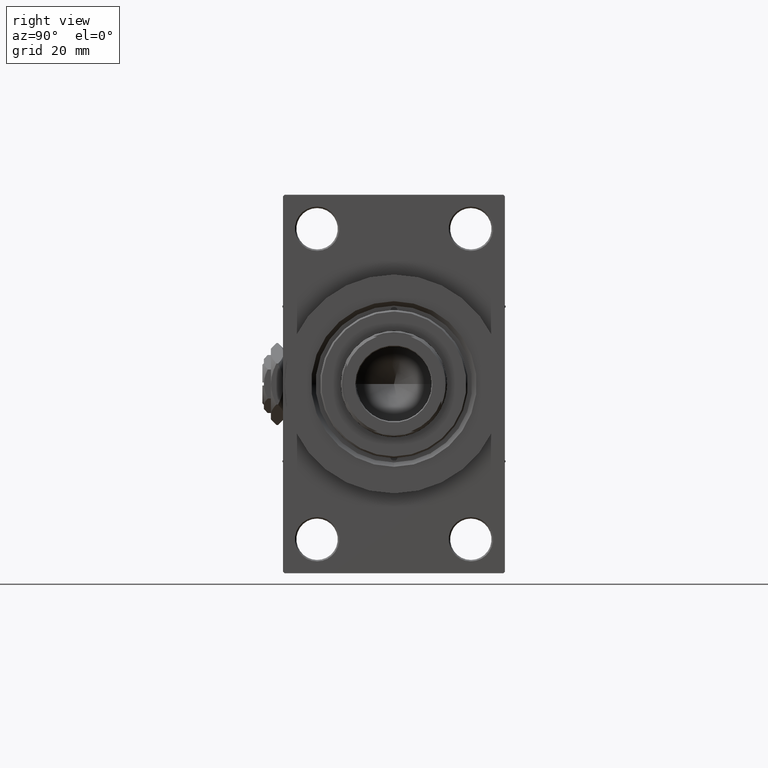
[diagram: clean part render]
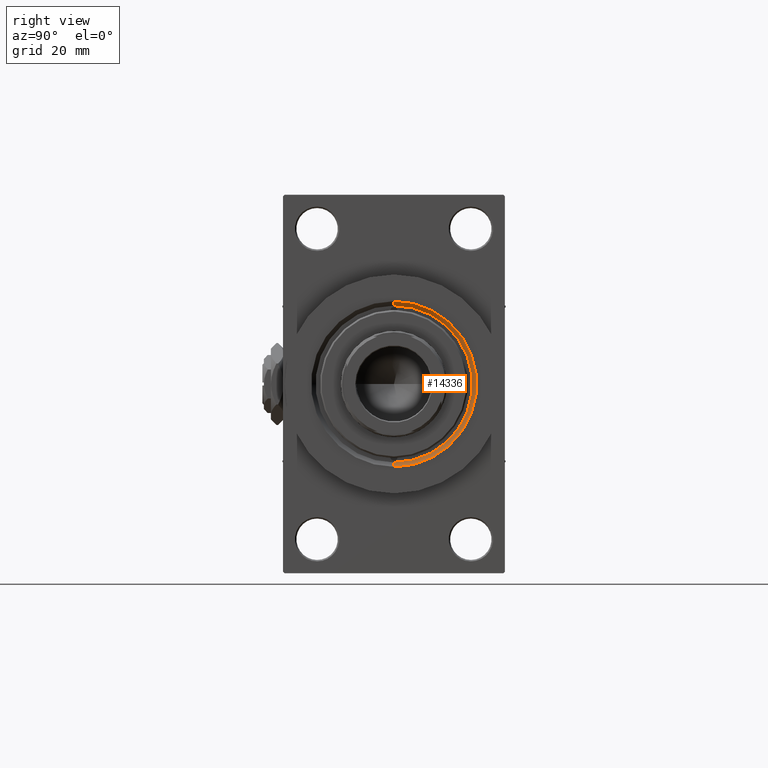
[diagram: same view with one face highlighted and labeled with its STEP entity id]
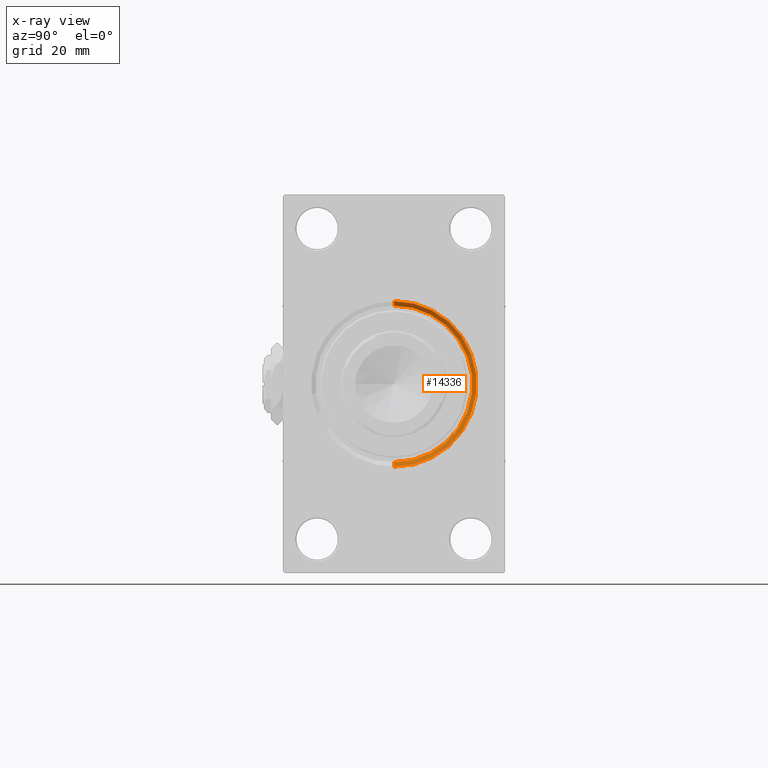
[diagram: x-ray of the same camera — body ghosted, the highlighted face saturated]
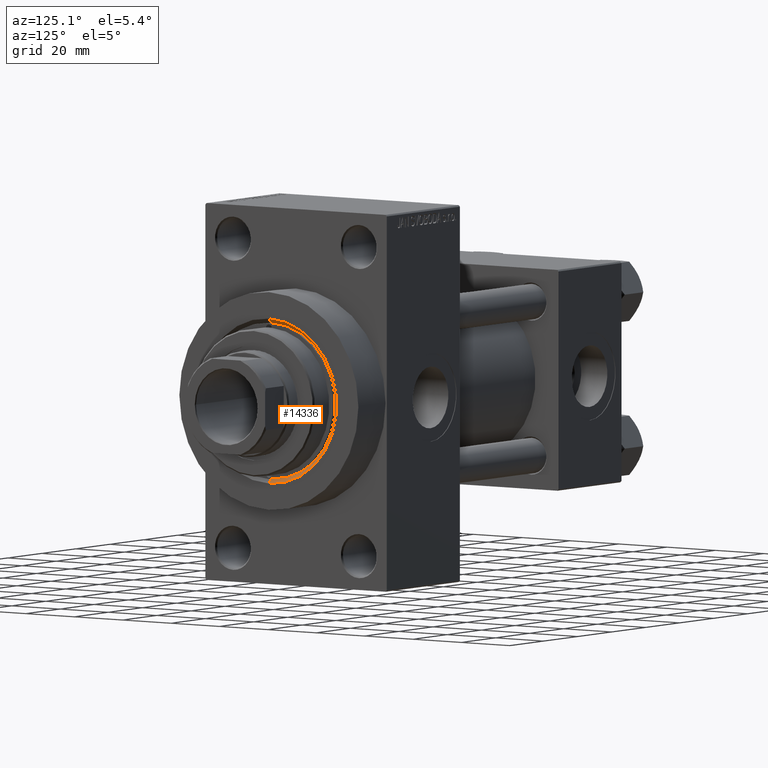
[diagram: same view with one face highlighted and labeled with its STEP entity id]
A machine part, right view. The second image highlights one B-rep face of the part: STEP entity #14336.
The next image is the same camera in x-ray: the body ghosted, the highlighted face saturated — about 0% of this face is hidden behind the body in this view.
A second angle (auxiliary view) of the same face is appended — the face is thin or edge-on in the first view.
In plain terms, the highlighted conical surface has half-angle 45 deg.
Its self-contained STEP definition (entity closure, byte-faithful):
#12 = LINE ( 'NONE', #30611, #41173 ) ;
#1110 = ORIENTED_EDGE ( 'NONE', *, *, #36808, .T. ) ;
#4066 = EDGE_CURVE ( 'NONE', #31779, #42152, #14354, .T. ) ;
#5989 = LINE ( 'NONE', #13019, #34380 ) ;
#8939 = ORIENTED_EDGE ( 'NONE', *, *, #15591, .F. ) ;
#9554 = VERTEX_POINT ( 'NONE', #20457 ) ;
#12112 = ORIENTED_EDGE ( 'NONE', *, *, #18642, .F. ) ;
#13019 = CARTESIAN_POINT ( 'NONE',  ( 152.5000000000000853, 0.000000000000000000, -26.50000000000000355 ) ) ;
#13994 = CARTESIAN_POINT ( 'NONE',  ( 152.5000000000000853, 0.000000000000000000, 0.000000000000000000 ) ) ;
#14336 = ADVANCED_FACE ( 'NONE', ( #23705 ), #38649, .F. ) ;
#14354 = CIRCLE ( 'NONE', #45542, 26.50000000000000355 ) ;
#15591 = EDGE_CURVE ( 'NONE', #45590, #9554, #22644, .T. ) ;
#18357 = CARTESIAN_POINT ( 'NONE',  ( 154.0000000000000284, 0.000000000000000000, 0.000000000000000000 ) ) ;
#18642 = EDGE_CURVE ( 'NONE', #42152, #45590, #12, .T. ) ;
#19096 = DIRECTION ( 'NONE',  ( -1.000000000000000000, -0.000000000000000000, -0.000000000000000000 ) ) ;
#19808 = DIRECTION ( 'NONE',  ( 0.7071067811865491270, 8.659560562354911904E-17, 0.7071067811865459074 ) ) ;
#20457 = CARTESIAN_POINT ( 'NONE',  ( 154.0000000000000284, 0.000000000000000000, -27.99999999999994316 ) ) ;
#20861 = CARTESIAN_POINT ( 'NONE',  ( 152.5000000000000853, 3.245314017740486554E-15, 26.50000000000000355 ) ) ;
#21070 = AXIS2_PLACEMENT_3D ( 'NONE', #18357, #19096, #41656 ) ;
#21745 = DIRECTION ( 'NONE',  ( 1.000000000000000000, 0.000000000000000000, 0.000000000000000000 ) ) ;
#22644 = CIRCLE ( 'NONE', #21070, 27.99999999999994316 ) ;
#23705 = FACE_OUTER_BOUND ( 'NONE', #35236, .T. ) ;
#25831 = AXIS2_PLACEMENT_3D ( 'NONE', #35262, #27482, #39007 ) ;
#27482 = DIRECTION ( 'NONE',  ( 1.000000000000000000, 0.000000000000000000, 0.000000000000000000 ) ) ;
#29273 = DIRECTION ( 'NONE',  ( 0.000000000000000000, 0.000000000000000000, -1.000000000000000000 ) ) ;
#30611 = CARTESIAN_POINT ( 'NONE',  ( 152.5000000000000853, 3.245314017740486554E-15, 26.50000000000000355 ) ) ;
#30918 = CARTESIAN_POINT ( 'NONE',  ( 154.0000000000000284, 3.429011037612582176E-15, 27.99999999999994316 ) ) ;
#31779 = VERTEX_POINT ( 'NONE', #44292 ) ;
#34380 = VECTOR ( 'NONE', #48099, 1000.000000000000114 ) ;
#35236 = EDGE_LOOP ( 'NONE', ( #12112, #43416, #1110, #8939 ) ) ;
#35262 = CARTESIAN_POINT ( 'NONE',  ( 152.5000000000000853, 0.000000000000000000, 0.000000000000000000 ) ) ;
#36808 = EDGE_CURVE ( 'NONE', #31779, #9554, #5989, .T. ) ;
#38649 = CONICAL_SURFACE ( 'NONE', #25831, 26.50000000000000355, 0.7853981633974459475 ) ;
#39007 = DIRECTION ( 'NONE',  ( 0.000000000000000000, 0.000000000000000000, -1.000000000000000000 ) ) ;
#41173 = VECTOR ( 'NONE', #19808, 1000.000000000000114 ) ;
#41656 = DIRECTION ( 'NONE',  ( 0.000000000000000000, 0.000000000000000000, -1.000000000000000000 ) ) ;
#42152 = VERTEX_POINT ( 'NONE', #20861 ) ;
#43416 = ORIENTED_EDGE ( 'NONE', *, *, #4066, .F. ) ;
#44292 = CARTESIAN_POINT ( 'NONE',  ( 152.5000000000000853, 0.000000000000000000, -26.50000000000000355 ) ) ;
#45542 = AXIS2_PLACEMENT_3D ( 'NONE', #13994, #21745, #29273 ) ;
#45590 = VERTEX_POINT ( 'NONE', #30918 ) ;
#48099 = DIRECTION ( 'NONE',  ( 0.7071067811865491270, 0.000000000000000000, -0.7071067811865459074 ) ) ;